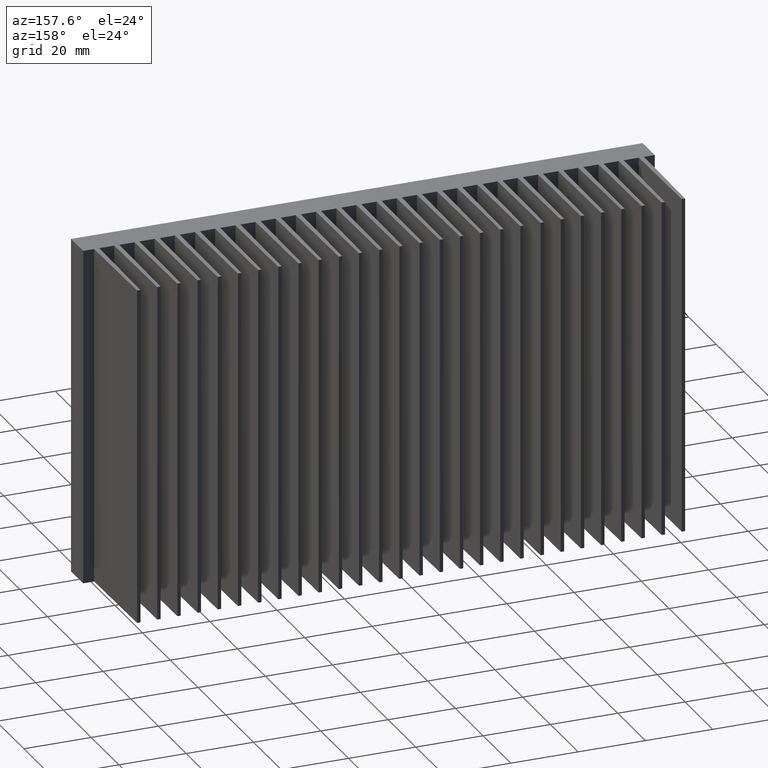
[diagram: clean part render]
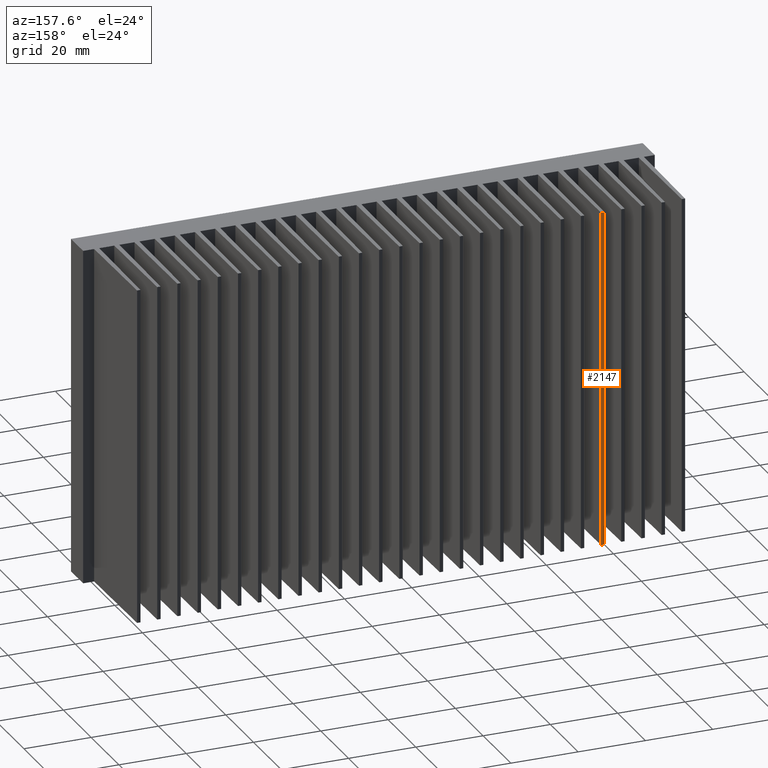
[diagram: same view with one face highlighted and labeled with its STEP entity id]
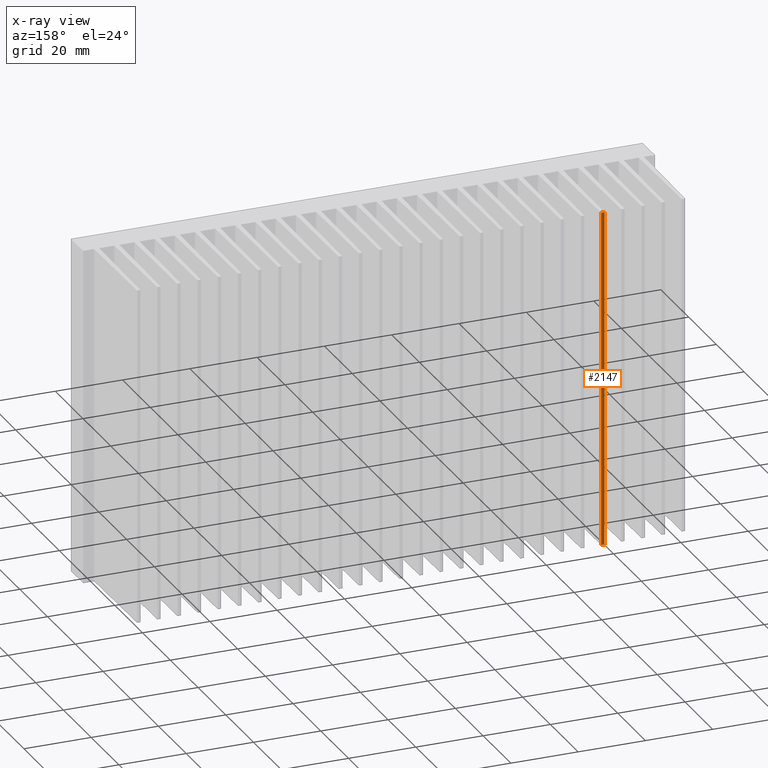
[diagram: x-ray of the same camera — body ghosted, the highlighted face saturated]
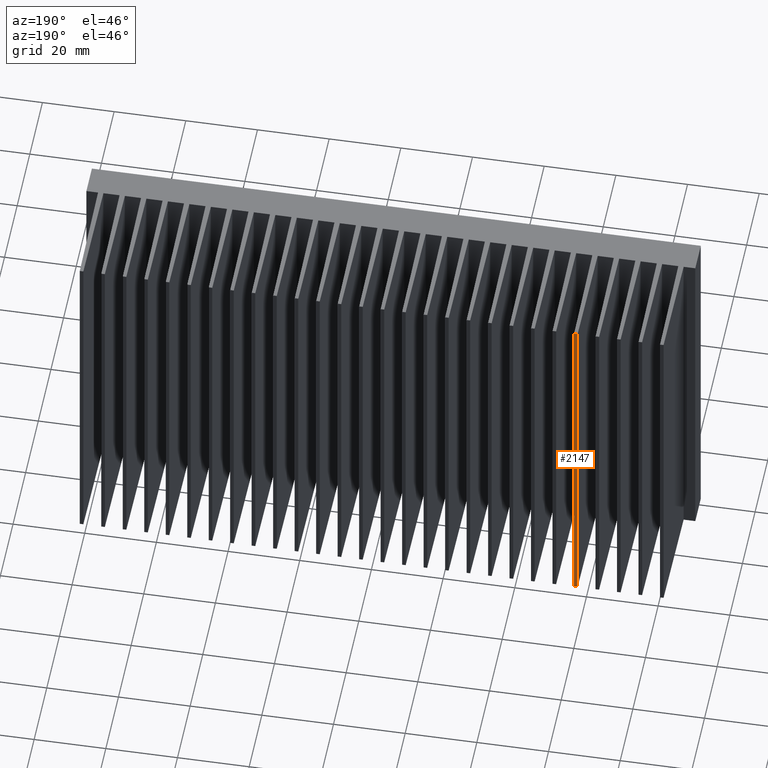
[diagram: same view with one face highlighted and labeled with its STEP entity id]
A machine part, auxiliary view. The second image highlights one B-rep face of the part: STEP entity #2147.
The next image is the same camera in x-ray: the body ghosted, the highlighted face saturated — about 0% of this face is hidden behind the body in this view.
A second angle (auxiliary view) of the same face is appended — the face is thin or edge-on in the first view.
In plain terms, the highlighted planar face has unit normal (0, -1, 0).
Its self-contained STEP definition (entity closure, byte-faithful):
#230 = LINE ( 'NONE', #2316, #793 ) ;
#254 = VERTEX_POINT ( 'NONE', #1744 ) ;
#323 = CARTESIAN_POINT ( 'NONE',  ( -56.46384000000126946, 19.56251200000005142, 100.0000000000000000 ) ) ;
#385 = AXIS2_PLACEMENT_3D ( 'NONE', #2901, #2880, #2879 ) ;
#698 = DIRECTION ( 'NONE',  ( -1.000000000000000000, 0.0000000000000000000, 0.0000000000000000000 ) ) ;
#709 = CARTESIAN_POINT ( 'NONE',  ( -56.46384000000126946, 19.56251200000005142, 100.0000000000000000 ) ) ;
#715 = EDGE_CURVE ( 'NONE', #1701, #254, #2038, .T. ) ;
#793 = VECTOR ( 'NONE', #2223, 1000.000000000000000 ) ;
#1376 = LINE ( 'NONE', #709, #1526 ) ;
#1464 = ORIENTED_EDGE ( 'NONE', *, *, #715, .T. ) ;
#1473 = CARTESIAN_POINT ( 'NONE',  ( -57.46320000000016393, 19.56251200000005142, 100.0000000000000000 ) ) ;
#1526 = VECTOR ( 'NONE', #698, 1000.000000000000000 ) ;
#1543 = EDGE_CURVE ( 'NONE', #1701, #3586, #1376, .T. ) ;
#1636 = LINE ( 'NONE', #2418, #1698 ) ;
#1698 = VECTOR ( 'NONE', #3312, 1000.000000000000000 ) ;
#1701 = VERTEX_POINT ( 'NONE', #323 ) ;
#1744 = CARTESIAN_POINT ( 'NONE',  ( -56.46384000000126946, 19.56251200000005142, 0.0000000000000000000 ) ) ;
#1822 = VECTOR ( 'NONE', #2561, 1000.000000000000000 ) ;
#2038 = LINE ( 'NONE', #2625, #1822 ) ;
#2049 = ORIENTED_EDGE ( 'NONE', *, *, #3739, .T. ) ;
#2147 = ADVANCED_FACE ( 'NONE', ( #3505 ), #2883, .F. ) ;
#2223 = DIRECTION ( 'NONE',  ( -1.000000000000000000, 0.0000000000000000000, 0.0000000000000000000 ) ) ;
#2316 = CARTESIAN_POINT ( 'NONE',  ( -56.46384000000126946, 19.56251200000005142, 0.0000000000000000000 ) ) ;
#2418 = CARTESIAN_POINT ( 'NONE',  ( -57.46320000000016393, 19.56251200000005142, 100.0000000000000000 ) ) ;
#2438 = ORIENTED_EDGE ( 'NONE', *, *, #1543, .F. ) ;
#2561 = DIRECTION ( 'NONE',  ( -0.0000000000000000000, -0.0000000000000000000, -1.000000000000000000 ) ) ;
#2613 = CARTESIAN_POINT ( 'NONE',  ( -57.46320000000016393, 19.56251200000005142, 0.0000000000000000000 ) ) ;
#2625 = CARTESIAN_POINT ( 'NONE',  ( -56.46384000000126946, 19.56251200000005142, 100.0000000000000000 ) ) ;
#2879 = DIRECTION ( 'NONE',  ( 0.0000000000000000000, -0.0000000000000000000, -1.000000000000000000 ) ) ;
#2880 = DIRECTION ( 'NONE',  ( 0.0000000000000000000, -1.000000000000000000, 0.0000000000000000000 ) ) ;
#2883 = PLANE ( 'NONE',  #385 ) ;
#2901 = CARTESIAN_POINT ( 'NONE',  ( -56.46384000000126946, 19.56251200000005142, 100.0000000000000000 ) ) ;
#3126 = ORIENTED_EDGE ( 'NONE', *, *, #3270, .F. ) ;
#3270 = EDGE_CURVE ( 'NONE', #3586, #3283, #1636, .T. ) ;
#3283 = VERTEX_POINT ( 'NONE', #2613 ) ;
#3312 = DIRECTION ( 'NONE',  ( -0.0000000000000000000, -0.0000000000000000000, -1.000000000000000000 ) ) ;
#3505 = FACE_OUTER_BOUND ( 'NONE', #3542, .T. ) ;
#3542 = EDGE_LOOP ( 'NONE', ( #2049, #3126, #2438, #1464 ) ) ;
#3586 = VERTEX_POINT ( 'NONE', #1473 ) ;
#3739 = EDGE_CURVE ( 'NONE', #254, #3283, #230, .T. ) ;